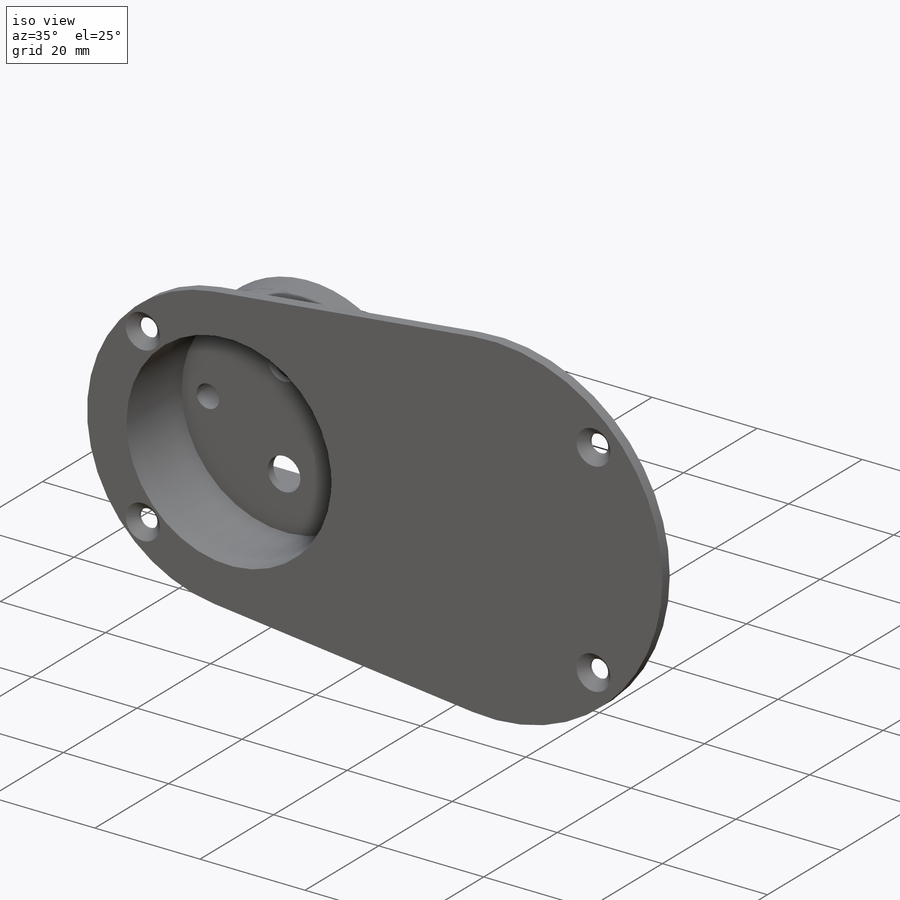
[diagram: iso view]
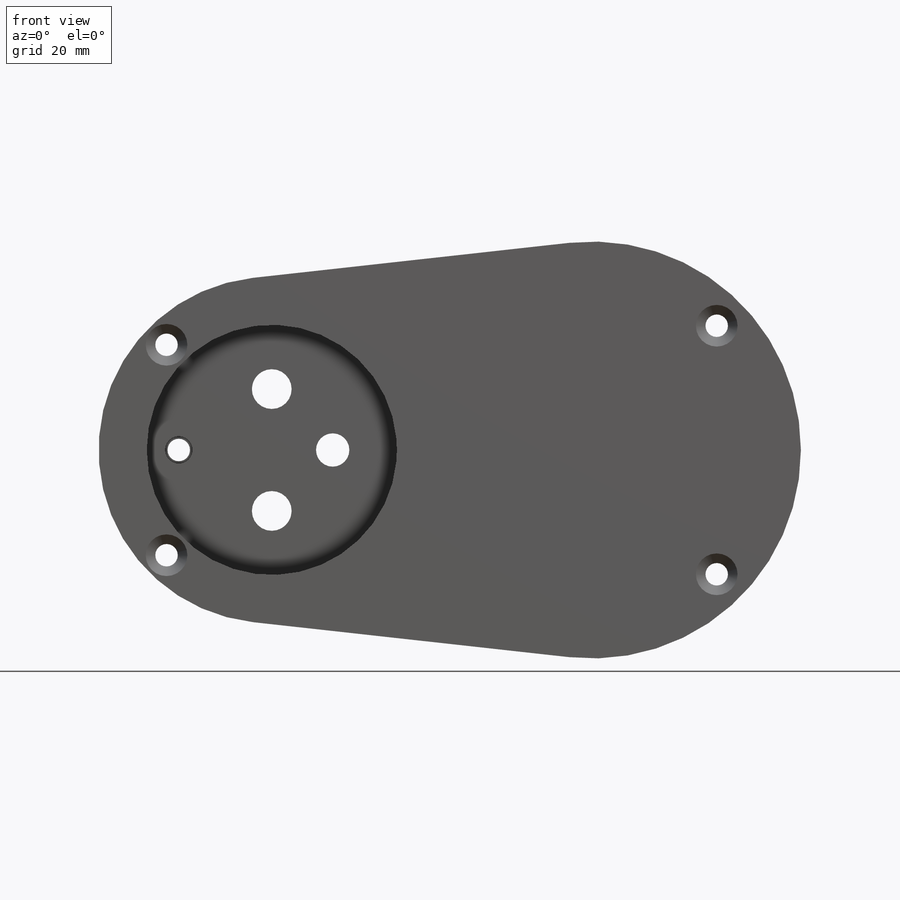
[diagram: front view]
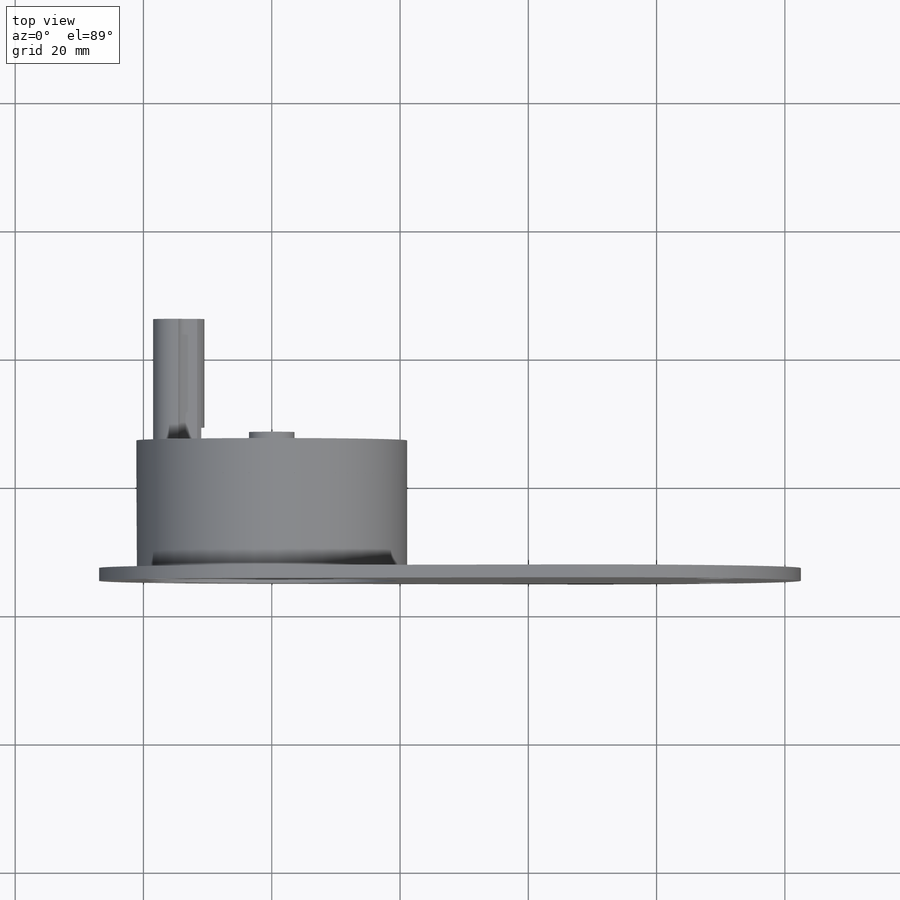
[diagram: top view]
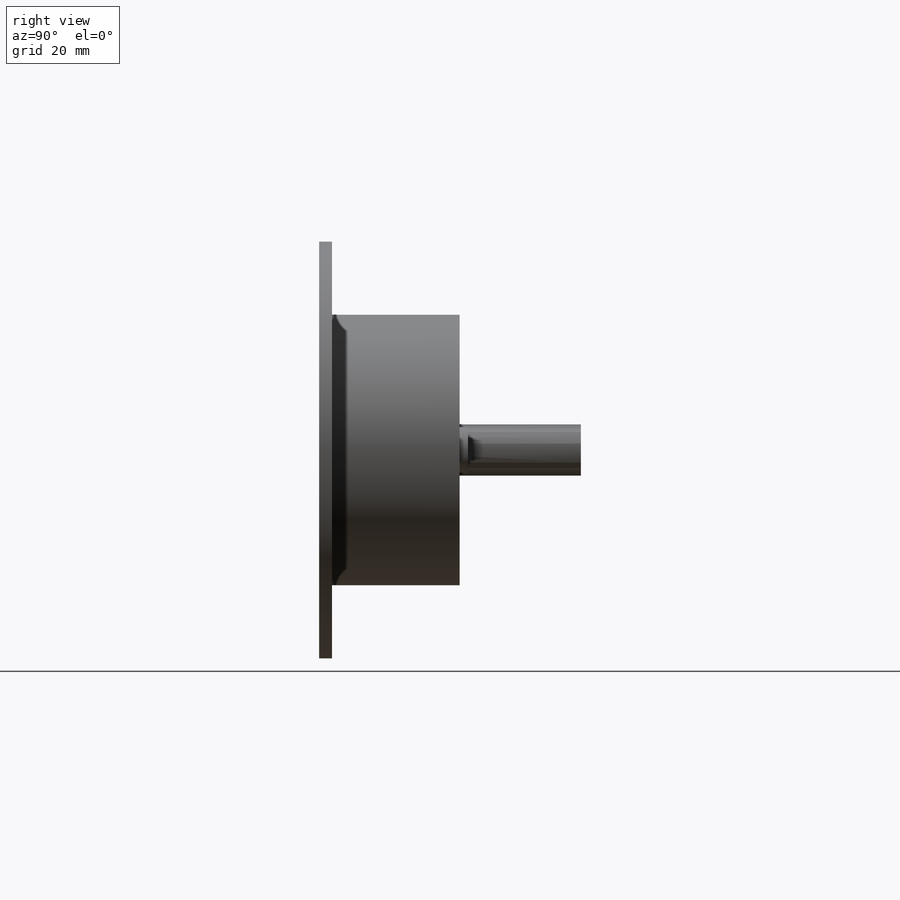
[diagram: right view]
SOLIDWORKS PART (.sldprt)
format: sldprt  version: not decoded by parser v0  size: 473,088 bytes
history: native  units: mm
features: cut_extrude x14, material x1, plane x1, sketch x1, extrude x1, chamfer x1, mirror x1 + 110 further entries (+7 scaffold rows collapsed; 378 parser-record rows omitted)
feature tree (515):
  scaffold x7  (default folders/planes/origin — collapsed)
  material  "Matériau <non spécifié>"
  plane  "Plan de face"
  "Plan de dessus"
  "Plan de droite"
  "Origine"  GUID_DATA1=3880806021.0
  parser-record x378  (decoder bookkeeping rows leaked as tree rows — omitted from the tree; the rows remain in map.json)
  "{5D853526-2849-42D0-B354-F85345520635}"
  "{06172BCC-4036-41B3-A467-97C1CD59F311}"
  "{13D3F910-A14A-439B-8F2C-36C4C7F96C60}"
  "{BDF07ECF-C278-418B-B47B-9DD0431E59FE}"
  sketch  "Esquisse2"
  "{18D40A08-8920-45C4-B2AA-F368007AFFE4}"
  extrude  "Boss.-Extru.2"  Depth=1.5mm
  "{46E7864A-B2F8-4384-9A81-FD152A0A60C4}"
  "{2A65C88F-CEF2-4002-94BB-A843B47E7E4F}"
  "{0D0AF513-E610-4BB0-8954-FFCEFD8AC66C}"
  "{8EFCF9D5-991E-43F4-A5AB-49C7EBF41115}"
  "Esquisse3"
  "{19C1EE2F-4E68-4049-AB4B-160C755DC0B8}"
  cut_extrude  "Enlèv. mat.-Extru.1"  [1 undecoded]
  "Esquisse4"
  "{5B55CA6F-1459-4B8A-B60B-0ABB4F069ACC}"
  "{D27FEE2B-53F6-41B6-83FA-801D4583C76D}"
  "{3D1FF5AD-3A2F-4963-A195-20C42E0DE6D2}"
  "{A517A836-3D12-4C80-87D3-6B71B160BD1D}"
  cut_extrude  "Boss.-Extru.3"  [1 undecoded]
  "Esquisse5"
  "{428119ED-1816-4A9D-B2CC-45E0EE6EB26A}"
  cut_extrude  "Boss.-Extru.4"  Depth=6.7mm
  "{1709BE02-D55F-4F4B-9E19-C02FCB94BDC1}"
  "{FF0EA820-509A-4FD1-82FD-84BF0E0315D8}"
  "{96D2E056-0617-41F3-9A70-73FA9A5B1047}"
  "{9D8D68EF-290F-4F9E-82AA-6C22A5BDD573}"
  "{40972A8E-8EC9-417E-9466-D13B64DC9397}"
  "{3FBBC5EC-8E2A-4356-AF6A-2CF9A9B60178}"
  "{40169A15-EFA1-4B32-9636-301661E1B96F}"
  "{5D1565B7-5415-47C8-9010-8196587CC7CE}"
  "{309118BD-08A5-4CEA-8ADE-FC9458D9B4B0}"
  "{79F5B954-B887-4805-8199-73A582DF51A3}"
  "{75F18226-C53A-4728-AF13-4BD3B04284BC}"
  "{E404F9E1-F5F5-49E9-A9BE-4033345CA1BE}"
  "{C79C2520-6C5F-41CE-A2F3-4CD90DFE2E54}"
  "{5F486033-DDD8-4403-96A8-675D5990503B}"
  "{7DCEB908-FF50-44F7-976A-A837677120C7}"
  "{44DF196D-158E-4BEE-A6FD-5FB528EAE6FC}"
  "Esquisse7"
  "{79D6FBCB-A9C1-4A83-9172-CB5C8AD0BA4F}"
  cut_extrude  "Boss.-Extru.6"  Depth=1.3mm
  "{6828D7D5-8635-4DA7-8CB6-A8541E93DB4B}"
  "{53BDD5C3-947F-4BBA-8B57-A6FEC49526AA}"
  "{32B109E7-0A46-4B58-A741-930CE1254DB3}"
  "{D40D8A28-1E52-48A3-B891-8498F31C97AB}"
  "{A03D93A7-C0F9-47D9-8A59-D157D7FE777D}"
  "{CE902A88-1F6D-4F46-9CAC-FB2584FAD327}"
  "{5B9DECAC-544D-445B-9B2A-CF0CB087AE28}"
  "{1C4A9070-4CEF-470D-9852-0AD196AFCA41}"
  "{6C159540-6647-4A84-BFC8-75ED5A3874D3}"
  "{6B65B101-E882-4DCF-A3EC-D6F6B0D35E9D}"
  "{860E96B4-87DD-453D-BB14-7599A639A01A}"
  "{3E236630-E2D7-41FB-9135-CF476DD6FED6}"
  "Esquisse9"
  "{52731383-53C4-45B8-A02F-FBF3F6F67E98}"
  cut_extrude  "Enlèv. mat.-Extru.2"  Depth=2mm
  "{FE822BCF-BE8D-4E41-B094-D519FC3FDC7F}"
  "{36459150-BFA5-4CE8-AF1C-F473B7D8F948}"
  "{099F0123-8CAE-4A03-9378-F9FFC93E40B6}"
  "{E343E8C8-8BBE-41D9-B801-1B9B55AB3915}"
  "{571335B8-5550-4D5A-BCBF-89B80B80830C}"
  "Esquisse10"
  "{5BD48A1A-3DF2-40FE-BB7A-6607A141358B}"
  cut_extrude  "Boss.-Extru.7"  Depth=0.2mm
  "{DC2AB588-7BA8-45CB-A567-6A95AF921A96}"
  "{A7DF2C80-918B-4A28-8136-06BB69DDDF51}"
  "{4681DD2F-C45F-4E41-A5B3-56937C94AD68}"
  "{F858A970-AA8B-4D0D-9A94-BCB4B00FE103}"
  "{B4A6651E-A0B0-4289-892D-FBEF8453A023}"
  "{A03EC463-8756-4DAE-A645-7740C31EEAE0}"
  "{F6984E62-4B0B-44CD-B9E7-235086581B48}"
  "Esquisse11"
  "{1AE84F3F-B291-4AB3-9B8A-CB2930BC858E}"
  cut_extrude  "Enlèv. mat.-Extru.3"  [1 undecoded]
  "Esquisse12"
  "{F352071D-053A-4630-B067-E87748AD972B}"
  cut_extrude  "Boss.-Extru.8"  Depth=3mm
  "{FA477112-1198-451D-9E07-B16D71EDBFE5}"
  "{15642FF2-A645-4B62-9CD8-C4F9A6B2BB65}"
  "Esquisse13"
  "{49A51ECB-9AB4-4599-9AAC-EDC469262335}"
  cut_extrude  "Enlèv. mat.-Extru.4"  [1 undecoded]
  "{2E48381D-9E81-4479-818D-47CEC67B9CC3}"
  "{3136C902-A741-4903-89A1-2FF70A6083D4}"
  "{DBA2F9B3-B7E8-4CC6-894B-089BD174EE1A}"
  "{5AC8F1E4-5576-4EDC-AC32-1B6E7927F963}"
  "{B0AAF48E-FA1C-41AC-9A5F-3C502B948256}"
  "{785DE0FC-9797-43DB-BF1E-3D89F2DC80FC}"
  "{5A5B1DF4-4C48-4BA4-9500-91393B8D6656}"
  "{9F36CC8B-7710-4650-B15B-1220F050E393}"
  "{68DBAAE0-7C8C-47A0-B6ED-49BD0AC0AC57}"
  "{370D3B44-F3F2-4CA9-B2AF-2E22E05D0D1E}"
  "{C4996C0B-D9E7-41C6-B6DA-5650232C9A90}"
  "{03FCA850-F197-4949-9E11-CF94CAFB7B6A}"
  "{2416F4E3-83C7-4D8D-9B35-FB4802E6561A}"
  "{886517BF-D177-4F09-A8D9-9EA590EA433B}"
  "{9011A2DD-AAA3-4CB9-A688-953E3809025F}"
  "{9B4D0274-3E3F-4300-9910-3176640B4574}"
  "{96D51C3F-84AA-4048-949B-5AE7F30D3932}"
  "{869FFAA8-9E7C-4CC8-AA42-5BCF9DE61512}"
  "{FD47EE15-4396-4FA8-ACD3-063DDB3B7F2D}"
  "{1BB9BC48-F487-4A16-AD8A-A7B9A16E5896}"
  "{9C2AECC6-5056-4B90-8EAA-ACB754848FCD}"
  "{30AEB91B-53C5-4BD2-B070-636634B2F0F4}"
  "{4118C14E-8E8D-4DB9-A0B9-9757921329F0}"
  "{B1648DB1-154A-4829-9732-8AD7F164882D}"
  "Esquisse14"
  "{1C2D87FE-BB5F-4AAA-9B06-DC39533E4A9B}"
  "{A3ED44A8-F833-4547-BFE5-C8CFD8203FBB}"
  "{9139181A-8ABC-4B2E-B479-A53900196752}"
  "{2B3DC115-7C94-4DFA-BEE7-98FE46996A4F}"
  "{0EE29252-29F0-45A5-947F-945153BEB785}"
  "{EFB55896-A254-459C-A026-DCDB24A65EA7}"
  "Esquisse15"
  cut_extrude  "Boss.-Extru.9"  [1 undecoded]
  cut_extrude  "Enlèv. mat.-Extru.5"  [1 undecoded]
  chamfer  "Chanfrein1"  Distance=1.5mm Angle=45deg
  "Esquisse16"
  cut_extrude  "Enlèv. mat.-Extru.7"  [1 undecoded]
  mirror  "Symétrie1"
  "Esquisse18"
  cut_extrude  "Enlèv. mat.-Extru.10"  [1 undecoded]
  "Esquisse19"
  cut_extrude  "Enlèv. mat.-Extru.11"  Depth=1mm
decode coverage: 8 of 18 modeling features carry decoded parameters; 110 rows unclassified (native names shown)
note: 8 parameter values undecoded
summary: no parameter record found for 8 features
note: suppression state not decoded; provenance and decode notes live in map.json
